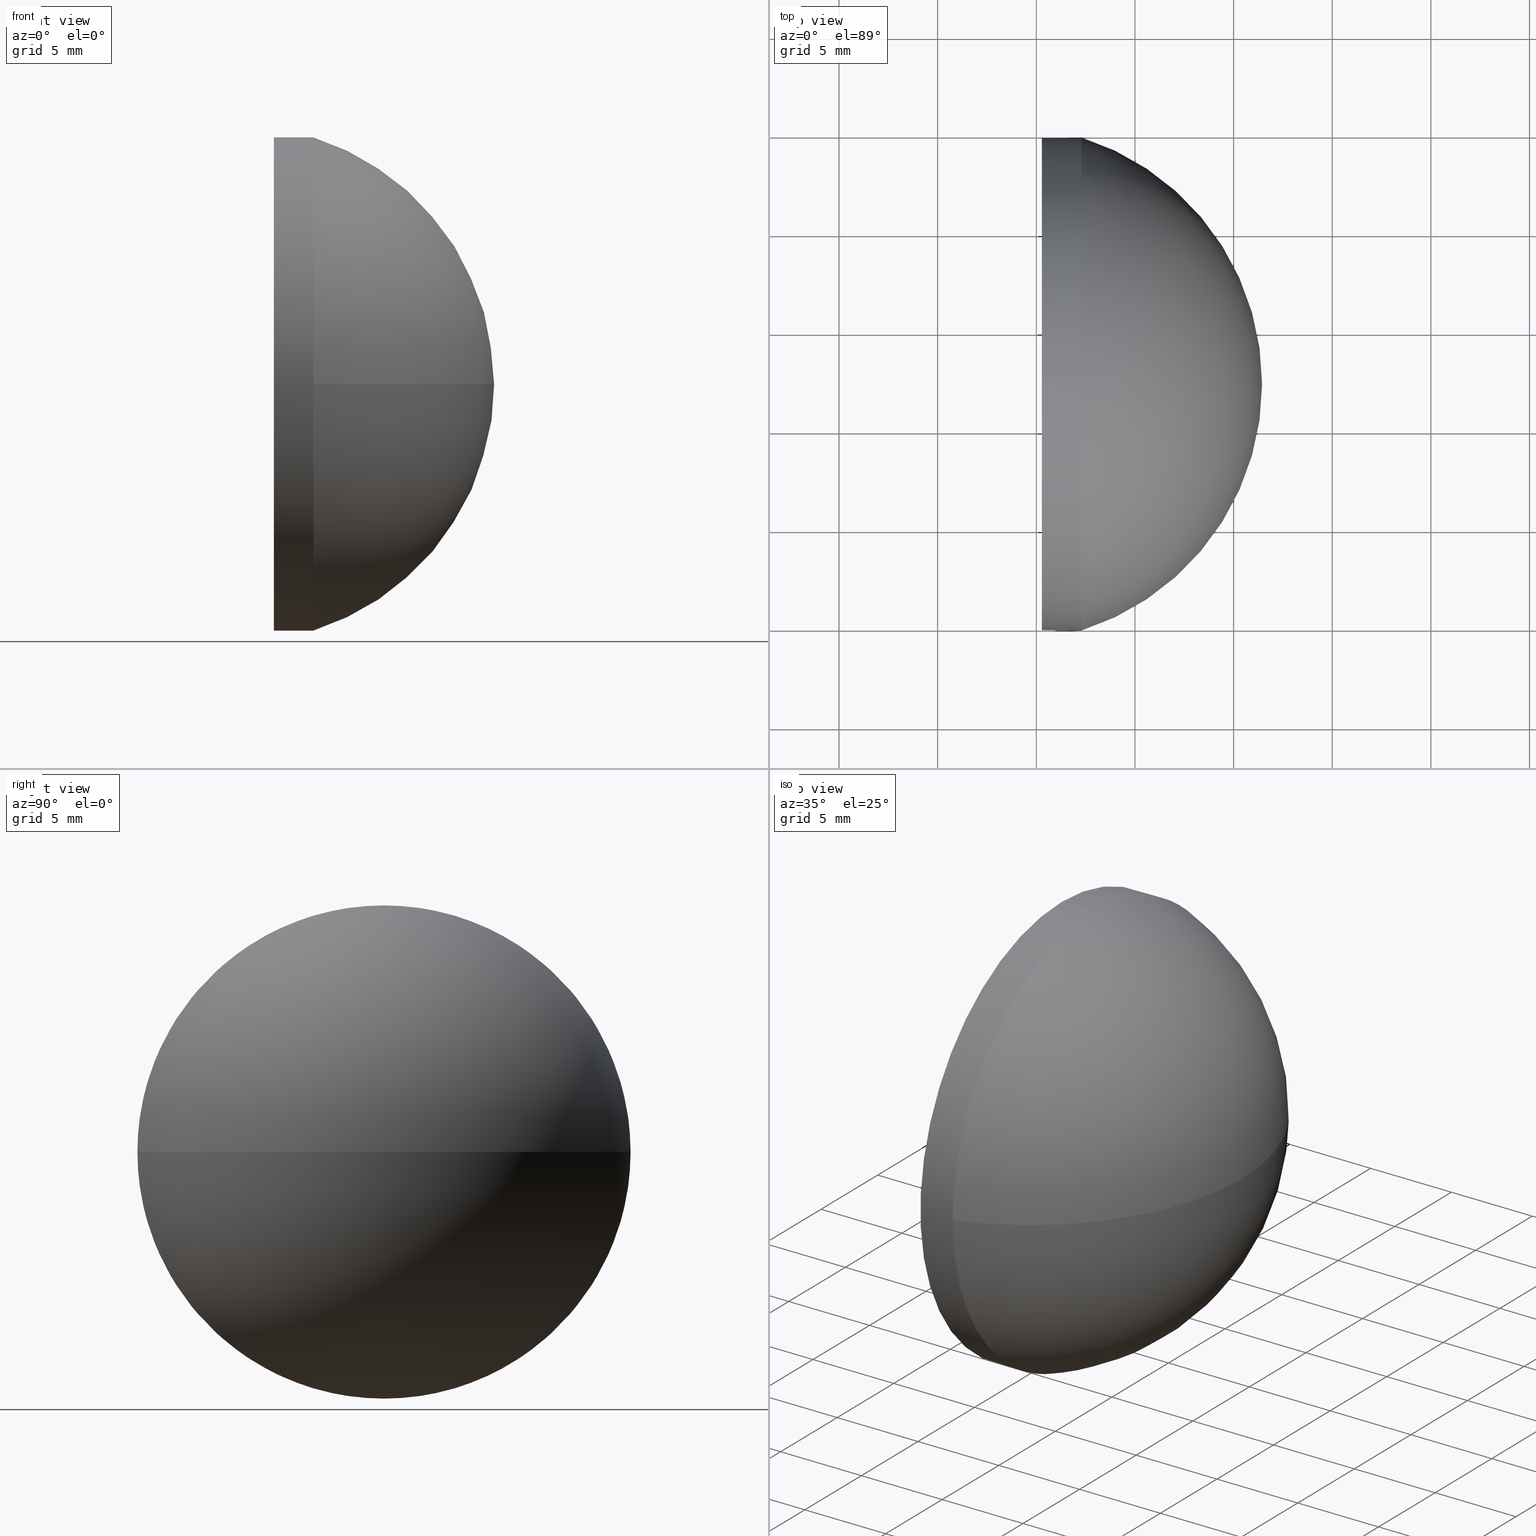
[diagram: canonical four-view strip — front | top / right | iso, engineering-drawing reading convention]
A machine part, canonical four-view strip (front | top / right | iso — engineering-drawing reading convention). The complete STEP part file that produces these views, byte-faithful:
ISO-10303-21;
HEADER;
FILE_DESCRIPTION (( 'STEP AP214' ),
    '1' );
FILE_NAME ('100036.STEP',
    '2019-05-30T09:54:49',
    ( '' ),
    ( '' ),
    'SwSTEP 2.0',
    'SolidWorks 2016',
    '' );
FILE_SCHEMA (( 'AUTOMOTIVE_DESIGN' ));
ENDSEC;

DATA;
#1 = PRESENTATION_LAYER_ASSIGNMENT (  '', '', ( #83 ) ) ;
#2 = DIRECTION ( 'NONE',  ( 1.000000000000000000, 0.0000000000000000000, 0.0000000000000000000 ) ) ;
#3 = VERTEX_POINT ( 'NONE', #131 ) ;
#4 = PRESENTATION_LAYER_ASSIGNMENT (  '', '', ( #68 ) ) ;
#5 = CARTESIAN_POINT ( 'NONE',  ( 207.2844079542375400, -115.1914362713783500, -1.530808498934191500E-015 ) ) ;
#6 =( NAMED_UNIT ( * ) PLANE_ANGLE_UNIT ( ) SI_UNIT ( $, .RADIAN. ) );
#7 = AXIS2_PLACEMENT_3D ( 'NONE', #74, #31, #58 ) ;
#8 = DIRECTION ( 'NONE',  ( 1.000000000000000000, 0.0000000000000000000, 0.0000000000000000000 ) ) ;
#9 = ORIENTED_EDGE ( 'NONE', *, *, #115, .F. ) ;
#10 = PRODUCT_DEFINITION_CONTEXT ( 'detailed design', #150, 'design' ) ;
#11 = CIRCLE ( 'NONE', #184, 12.49999999999999600 ) ;
#12 = ADVANCED_FACE ( 'NONE', ( #138 ), #16, .F. ) ;
#13 =( GEOMETRIC_REPRESENTATION_CONTEXT ( 3 ) GLOBAL_UNCERTAINTY_ASSIGNED_CONTEXT ( ( #143 ) ) GLOBAL_UNIT_ASSIGNED_CONTEXT ( ( #139, #154, #66 ) ) REPRESENTATION_CONTEXT ( 'NONE', 'WORKASPACE' ) );
#14 = DIRECTION ( 'NONE',  ( -1.000000000000000000, -0.0000000000000000000, -0.0000000000000000000 ) ) ;
#15 = ORIENTED_EDGE ( 'NONE', *, *, #99, .T. ) ;
#16 = PLANE ( 'NONE',  #7 ) ;
#17 = FACE_OUTER_BOUND ( 'NONE', #185, .T. ) ;
#18 = APPLICATION_PROTOCOL_DEFINITION ( 'draft international standard', 'automotive_design', 1998, #182 ) ;
#19 = FILL_AREA_STYLE_COLOUR ( '', #177 ) ;
#20 = CYLINDRICAL_SURFACE ( 'NONE', #121, 12.49999999999999600 ) ;
#21 = CIRCLE ( 'NONE', #126, 12.49999999999999600 ) ;
#22 = CIRCLE ( 'NONE', #107, 13.10893013100439200 ) ;
#23 = ORIENTED_EDGE ( 'NONE', *, *, #146, .T. ) ;
#24 = PRODUCT ( '100036', '100036', '', ( #45 ) ) ;
#25 = SHAPE_DEFINITION_REPRESENTATION ( #69, #140 ) ;
#26 = ADVANCED_FACE ( 'NONE', ( #82 ), #145, .T. ) ;
#27 = EDGE_CURVE ( 'NONE', #70, #3, #100, .T. ) ;
#28 = ORIENTED_EDGE ( 'NONE', *, *, #55, .F. ) ;
#29 = DIRECTION ( 'NONE',  ( -0.0000000000000000000, 0.0000000000000000000, -1.000000000000000000 ) ) ;
#30 = DIRECTION ( 'NONE',  ( -1.000000000000000000, -0.0000000000000000000, -0.0000000000000000000 ) ) ;
#31 = DIRECTION ( 'NONE',  ( 1.000000000000000000, 0.0000000000000000000, 0.0000000000000000000 ) ) ;
#32 = PRODUCT_DEFINITION_FORMATION_WITH_SPECIFIED_SOURCE ( '�κ�', '', #24, .NOT_KNOWN. ) ;
#33 = DIRECTION ( 'NONE',  ( -1.000000000000000000, -0.0000000000000000000, -0.0000000000000000000 ) ) ;
#34 = DIRECTION ( 'NONE',  ( 0.0000000000000000000, 1.000000000000000000, 0.0000000000000000000 ) ) ;
#35 = EDGE_LOOP ( 'NONE', ( #156, #128, #15, #142, #39 ) ) ;
#36 =( LENGTH_UNIT ( ) NAMED_UNIT ( * ) SI_UNIT ( .MILLI., .METRE. ) );
#37 = SURFACE_STYLE_USAGE ( .BOTH. , #76 ) ;
#38 = CARTESIAN_POINT ( 'NONE',  ( 0.0000000000000000000, 0.0000000000000000000, 0.0000000000000000000 ) ) ;
#39 = ORIENTED_EDGE ( 'NONE', *, *, #157, .F. ) ;
#40 = ORIENTED_EDGE ( 'NONE', *, *, #79, .T. ) ;
#41 = AXIS2_PLACEMENT_3D ( 'NONE', #117, #33, #75 ) ;
#42 = CIRCLE ( 'NONE', #73, 12.49999999999999600 ) ;
#43 = DIRECTION ( 'NONE',  ( -1.000000000000000000, -0.0000000000000000000, -0.0000000000000000000 ) ) ;
#44 = MECHANICAL_DESIGN_GEOMETRIC_PRESENTATION_REPRESENTATION (  '', ( #68 ), #113 ) ;
#45 = PRODUCT_CONTEXT ( 'NONE', #182, 'mechanical' ) ;
#46 = COLOUR_RGB ( '',1.000000000000000000, 1.000000000000000000, 1.000000000000000000 ) ;
#47 = DIRECTION ( 'NONE',  ( 0.0000000000000000000, 1.224646799147353200E-016, -1.000000000000000000 ) ) ;
#48 =( NAMED_UNIT ( * ) SI_UNIT ( $, .STERADIAN. ) SOLID_ANGLE_UNIT ( ) );
#49 = ORIENTED_EDGE ( 'NONE', *, *, #127, .T. ) ;
#50 = VERTEX_POINT ( 'NONE', #88 ) ;
#51 = EDGE_LOOP ( 'NONE', ( #124, #65, #28, #9 ) ) ;
#52 = AXIS2_PLACEMENT_3D ( 'NONE', #130, #147, #105 ) ;
#53 = VECTOR ( 'NONE', #78, 1000.000000000000000 ) ;
#54 =( GEOMETRIC_REPRESENTATION_CONTEXT ( 3 ) GLOBAL_UNCERTAINTY_ASSIGNED_CONTEXT ( ( #106 ) ) GLOBAL_UNIT_ASSIGNED_CONTEXT ( ( #36, #6, #48 ) ) REPRESENTATION_CONTEXT ( 'NONE', 'WORKASPACE' ) );
#55 = EDGE_CURVE ( 'NONE', #174, #133, #11, .T. ) ;
#56 = DIRECTION ( 'NONE',  ( 0.0000000000000000000, 0.0000000000000000000, 1.000000000000000000 ) ) ;
#57 = FACE_OUTER_BOUND ( 'NONE', #35, .T. ) ;
#58 = DIRECTION ( 'NONE',  ( 0.0000000000000000000, 0.0000000000000000000, -1.000000000000000000 ) ) ;
#59 = CARTESIAN_POINT ( 'NONE',  ( 207.2844079542375400, -102.6914362713783400, 0.0000000000000000000 ) ) ;
#60 = SPHERICAL_SURFACE ( 'NONE', #81, 13.10893013100438500 ) ;
#61 = DIRECTION ( 'NONE',  ( 0.0000000000000000000, 0.0000000000000000000, 1.000000000000000000 ) ) ;
#62 = CARTESIAN_POINT ( 'NONE',  ( 205.2844079542375400, -102.6914362713783400, 0.0000000000000000000 ) ) ;
#63 = DIRECTION ( 'NONE',  ( -1.000000000000000000, -0.0000000000000000000, -0.0000000000000000000 ) ) ;
#64 = CYLINDRICAL_SURFACE ( 'NONE', #71, 12.49999999999999600 ) ;
#65 = ORIENTED_EDGE ( 'NONE', *, *, #137, .T. ) ;
#66 =( NAMED_UNIT ( * ) SI_UNIT ( $, .STERADIAN. ) SOLID_ANGLE_UNIT ( ) );
#67 = ORIENTED_EDGE ( 'NONE', *, *, #99, .F. ) ;
#68 = STYLED_ITEM ( 'NONE', ( #85 ), #149 ) ;
#69 = PRODUCT_DEFINITION_SHAPE ( 'NONE', 'NONE',  #163 ) ;
#70 = VERTEX_POINT ( 'NONE', #160 ) ;
#71 = AXIS2_PLACEMENT_3D ( 'NONE', #153, #63, #134 ) ;
#72 = DIRECTION ( 'NONE',  ( -1.000000000000000000, -0.0000000000000000000, -0.0000000000000000000 ) ) ;
#73 = AXIS2_PLACEMENT_3D ( 'NONE', #95, #136, #61 ) ;
#74 = CARTESIAN_POINT ( 'NONE',  ( 205.2844079542375400, -102.6914362713783400, 0.0000000000000000000 ) ) ;
#75 = DIRECTION ( 'NONE',  ( 0.0000000000000000000, 0.0000000000000000000, 1.000000000000000000 ) ) ;
#76 = SURFACE_SIDE_STYLE ('',( #114 ) ) ;
#77 = ORIENTED_EDGE ( 'NONE', *, *, #109, .T. ) ;
#78 = DIRECTION ( 'NONE',  ( -1.000000000000000000, -0.0000000000000000000, -0.0000000000000000000 ) ) ;
#79 = EDGE_CURVE ( 'NONE', #70, #152, #141, .T. ) ;
#80 = SURFACE_STYLE_USAGE ( .BOTH. , #151 ) ;
#81 = AXIS2_PLACEMENT_3D ( 'NONE', #86, #29, #34 ) ;
#82 = FACE_OUTER_BOUND ( 'NONE', #183, .T. ) ;
#83 = STYLED_ITEM ( 'NONE', ( #144 ), #140 ) ;
#84 = ADVANCED_FACE ( 'NONE', ( #57 ), #20, .T. ) ;
#85 = PRESENTATION_STYLE_ASSIGNMENT (( #80 ) ) ;
#86 = CARTESIAN_POINT ( 'NONE',  ( 203.3354778232331100, -102.6914362713783400, 0.0000000000000000000 ) ) ;
#87 = VERTEX_POINT ( 'NONE', #161 ) ;
#88 = CARTESIAN_POINT ( 'NONE',  ( 216.4444079542375100, -102.6914362713783400, 0.0000000000000000000 ) ) ;
#89 = DIRECTION ( 'NONE',  ( 0.0000000000000000000, 0.0000000000000000000, 1.000000000000000000 ) ) ;
#90 = CIRCLE ( 'NONE', #98, 12.49999999999999600 ) ;
#91 = FILL_AREA_STYLE ('',( #173 ) ) ;
#92 = AXIS2_PLACEMENT_3D ( 'NONE', #38, #89, #2 ) ;
#93 = DIRECTION ( 'NONE',  ( -0.0000000000000000000, 0.0000000000000000000, 1.000000000000000000 ) ) ;
#94 = FACE_OUTER_BOUND ( 'NONE', #51, .T. ) ;
#95 = CARTESIAN_POINT ( 'NONE',  ( 207.2844079542375400, -102.6914362713783400, 0.0000000000000000000 ) ) ;
#96 = UNCERTAINTY_MEASURE_WITH_UNIT (LENGTH_MEASURE( 1.000000000000000100E-005 ), #165, 'distance_accuracy_value', 'NONE');
#97 = SURFACE_STYLE_FILL_AREA ( #91 ) ;
#98 = AXIS2_PLACEMENT_3D ( 'NONE', #103, #14, #116 ) ;
#99 = EDGE_CURVE ( 'NONE', #133, #70, #90, .T. ) ;
#100 = LINE ( 'NONE', #164, #108 ) ;
#101 = MECHANICAL_DESIGN_GEOMETRIC_PRESENTATION_REPRESENTATION (  '', ( #83 ), #13 ) ;
#102 = CIRCLE ( 'NONE', #169, 12.49999999999999600 ) ;
#103 = CARTESIAN_POINT ( 'NONE',  ( 207.2844079542375400, -102.6914362713783400, 0.0000000000000000000 ) ) ;
#104 = ORIENTED_EDGE ( 'NONE', *, *, #27, .F. ) ;
#105 = DIRECTION ( 'NONE',  ( 0.0000000000000000000, 1.000000000000000000, 0.0000000000000000000 ) ) ;
#106 = UNCERTAINTY_MEASURE_WITH_UNIT (LENGTH_MEASURE( 1.000000000000000100E-005 ), #36, 'distance_accuracy_value', 'NONE');
#107 = AXIS2_PLACEMENT_3D ( 'NONE', #180, #93, #8 ) ;
#108 = VECTOR ( 'NONE', #132, 1000.000000000000000 ) ;
#109 = EDGE_CURVE ( 'NONE', #3, #87, #102, .T. ) ;
#110 = DIRECTION ( 'NONE',  ( 0.0000000000000000000, 1.000000000000000000, 1.224646799147352500E-016 ) ) ;
#111 = PRODUCT_RELATED_PRODUCT_CATEGORY ( 'part', '', ( #24 ) ) ;
#112 = ADVANCED_FACE ( 'NONE', ( #94 ), #60, .T. ) ;
#113 =( GEOMETRIC_REPRESENTATION_CONTEXT ( 3 ) GLOBAL_UNCERTAINTY_ASSIGNED_CONTEXT ( ( #96 ) ) GLOBAL_UNIT_ASSIGNED_CONTEXT ( ( #165, #122, #119 ) ) REPRESENTATION_CONTEXT ( 'NONE', 'WORKASPACE' ) );
#114 = SURFACE_STYLE_FILL_AREA ( #123 ) ;
#115 = EDGE_CURVE ( 'NONE', #152, #174, #42, .T. ) ;
#116 = DIRECTION ( 'NONE',  ( 0.0000000000000000000, 0.0000000000000000000, 1.000000000000000000 ) ) ;
#117 = CARTESIAN_POINT ( 'NONE',  ( 207.2844079542375400, -102.6914362713783400, 0.0000000000000000000 ) ) ;
#118 = CARTESIAN_POINT ( 'NONE',  ( 203.7723767123476400, -102.6914362713783400, 0.0000000000000000000 ) ) ;
#119 =( NAMED_UNIT ( * ) SI_UNIT ( $, .STERADIAN. ) SOLID_ANGLE_UNIT ( ) );
#120 = LINE ( 'NONE', #135, #53 ) ;
#121 = AXIS2_PLACEMENT_3D ( 'NONE', #118, #176, #175 ) ;
#122 =( NAMED_UNIT ( * ) PLANE_ANGLE_UNIT ( ) SI_UNIT ( $, .RADIAN. ) );
#123 = FILL_AREA_STYLE ('',( #19 ) ) ;
#124 = ORIENTED_EDGE ( 'NONE', *, *, #127, .F. ) ;
#125 = ORIENTED_EDGE ( 'NONE', *, *, #137, .F. ) ;
#126 = AXIS2_PLACEMENT_3D ( 'NONE', #62, #43, #148 ) ;
#127 = EDGE_CURVE ( 'NONE', #50, #152, #22, .T. ) ;
#128 = ORIENTED_EDGE ( 'NONE', *, *, #55, .T. ) ;
#129 = DIRECTION ( 'NONE',  ( 0.0000000000000000000, 0.0000000000000000000, 1.000000000000000000 ) ) ;
#130 = CARTESIAN_POINT ( 'NONE',  ( 203.3354778232331100, -102.6914362713783400, 0.0000000000000000000 ) ) ;
#131 = CARTESIAN_POINT ( 'NONE',  ( 205.2844079542375400, -102.6914362713783400, 12.49999999999999600 ) ) ;
#132 = DIRECTION ( 'NONE',  ( -1.000000000000000000, -0.0000000000000000000, -0.0000000000000000000 ) ) ;
#133 = VERTEX_POINT ( 'NONE', #5 ) ;
#134 = DIRECTION ( 'NONE',  ( 0.0000000000000000000, 0.0000000000000000000, 1.000000000000000000 ) ) ;
#135 = CARTESIAN_POINT ( 'NONE',  ( 203.7723767123476400, -102.6914362713783400, -12.49999999999999600 ) ) ;
#136 = DIRECTION ( 'NONE',  ( -1.000000000000000000, -0.0000000000000000000, -0.0000000000000000000 ) ) ;
#137 = EDGE_CURVE ( 'NONE', #50, #133, #172, .T. ) ;
#138 = FACE_OUTER_BOUND ( 'NONE', #166, .T. ) ;
#139 =( LENGTH_UNIT ( ) NAMED_UNIT ( * ) SI_UNIT ( .MILLI., .METRE. ) );
#140 = ADVANCED_BREP_SHAPE_REPRESENTATION ( '100036', ( #149, #92 ), #54 ) ;
#141 = CIRCLE ( 'NONE', #41, 12.49999999999999600 ) ;
#142 = ORIENTED_EDGE ( 'NONE', *, *, #27, .T. ) ;
#143 = UNCERTAINTY_MEASURE_WITH_UNIT (LENGTH_MEASURE( 1.000000000000000100E-005 ), #139, 'distance_accuracy_value', 'NONE');
#144 = PRESENTATION_STYLE_ASSIGNMENT (( #37 ) ) ;
#145 = SPHERICAL_SURFACE ( 'NONE', #52, 13.10893013100438500 ) ;
#146 = EDGE_CURVE ( 'NONE', #174, #87, #120, .T. ) ;
#147 = DIRECTION ( 'NONE',  ( -0.0000000000000000000, 0.0000000000000000000, -1.000000000000000000 ) ) ;
#148 = DIRECTION ( 'NONE',  ( 0.0000000000000000000, 0.0000000000000000000, 1.000000000000000000 ) ) ;
#149 = MANIFOLD_SOLID_BREP ( '��ת1', #162 ) ;
#150 = APPLICATION_CONTEXT ( 'automotive_design' ) ;
#151 = SURFACE_SIDE_STYLE ('',( #97 ) ) ;
#152 = VERTEX_POINT ( 'NONE', #167 ) ;
#153 = CARTESIAN_POINT ( 'NONE',  ( 203.7723767123476400, -102.6914362713783400, 0.0000000000000000000 ) ) ;
#154 =( NAMED_UNIT ( * ) PLANE_ANGLE_UNIT ( ) SI_UNIT ( $, .RADIAN. ) );
#155 = AXIS2_PLACEMENT_3D ( 'NONE', #178, #47, #110 ) ;
#156 = ORIENTED_EDGE ( 'NONE', *, *, #146, .F. ) ;
#157 = EDGE_CURVE ( 'NONE', #87, #3, #21, .T. ) ;
#158 = ORIENTED_EDGE ( 'NONE', *, *, #115, .T. ) ;
#159 = ADVANCED_FACE ( 'NONE', ( #17 ), #64, .T. ) ;
#160 = CARTESIAN_POINT ( 'NONE',  ( 207.2844079542375400, -102.6914362713783400, 12.49999999999999600 ) ) ;
#161 = CARTESIAN_POINT ( 'NONE',  ( 205.2844079542375400, -102.6914362713783400, -12.49999999999999600 ) ) ;
#162 = CLOSED_SHELL ( 'NONE', ( #159, #112, #26, #84, #12 ) ) ;
#163 = PRODUCT_DEFINITION ( 'δ֪', '', #32, #10 ) ;
#164 = CARTESIAN_POINT ( 'NONE',  ( 203.7723767123476400, -102.6914362713783400, 12.49999999999999600 ) ) ;
#165 =( LENGTH_UNIT ( ) NAMED_UNIT ( * ) SI_UNIT ( .MILLI., .METRE. ) );
#166 = EDGE_LOOP ( 'NONE', ( #77, #171 ) ) ;
#167 = CARTESIAN_POINT ( 'NONE',  ( 207.2844079542375400, -90.19143627137832200, 0.0000000000000000000 ) ) ;
#168 = CARTESIAN_POINT ( 'NONE',  ( 207.2844079542375400, -102.6914362713783400, -12.49999999999999600 ) ) ;
#169 = AXIS2_PLACEMENT_3D ( 'NONE', #186, #30, #129 ) ;
#170 = ORIENTED_EDGE ( 'NONE', *, *, #79, .F. ) ;
#171 = ORIENTED_EDGE ( 'NONE', *, *, #157, .T. ) ;
#172 = CIRCLE ( 'NONE', #155, 13.10893013100439200 ) ;
#173 = FILL_AREA_STYLE_COLOUR ( '', #46 ) ;
#174 = VERTEX_POINT ( 'NONE', #168 ) ;
#175 = DIRECTION ( 'NONE',  ( 0.0000000000000000000, 0.0000000000000000000, 1.000000000000000000 ) ) ;
#176 = DIRECTION ( 'NONE',  ( -1.000000000000000000, -0.0000000000000000000, -0.0000000000000000000 ) ) ;
#177 = COLOUR_RGB ( '',1.000000000000000000, 1.000000000000000000, 1.000000000000000000 ) ;
#178 = CARTESIAN_POINT ( 'NONE',  ( 203.3354778232331100, -102.6914362713783400, 0.0000000000000000000 ) ) ;
#179 = APPLICATION_PROTOCOL_DEFINITION ( 'draft international standard', 'automotive_design', 1998, #150 ) ;
#180 = CARTESIAN_POINT ( 'NONE',  ( 203.3354778232331100, -102.6914362713783400, 0.0000000000000000000 ) ) ;
#181 = ORIENTED_EDGE ( 'NONE', *, *, #109, .F. ) ;
#182 = APPLICATION_CONTEXT ( 'automotive_design' ) ;
#183 = EDGE_LOOP ( 'NONE', ( #125, #49, #170, #67 ) ) ;
#184 = AXIS2_PLACEMENT_3D ( 'NONE', #59, #72, #56 ) ;
#185 = EDGE_LOOP ( 'NONE', ( #158, #23, #181, #104, #40 ) ) ;
#186 = CARTESIAN_POINT ( 'NONE',  ( 205.2844079542375400, -102.6914362713783400, 0.0000000000000000000 ) ) ;
ENDSEC;
END-ISO-10303-21;
